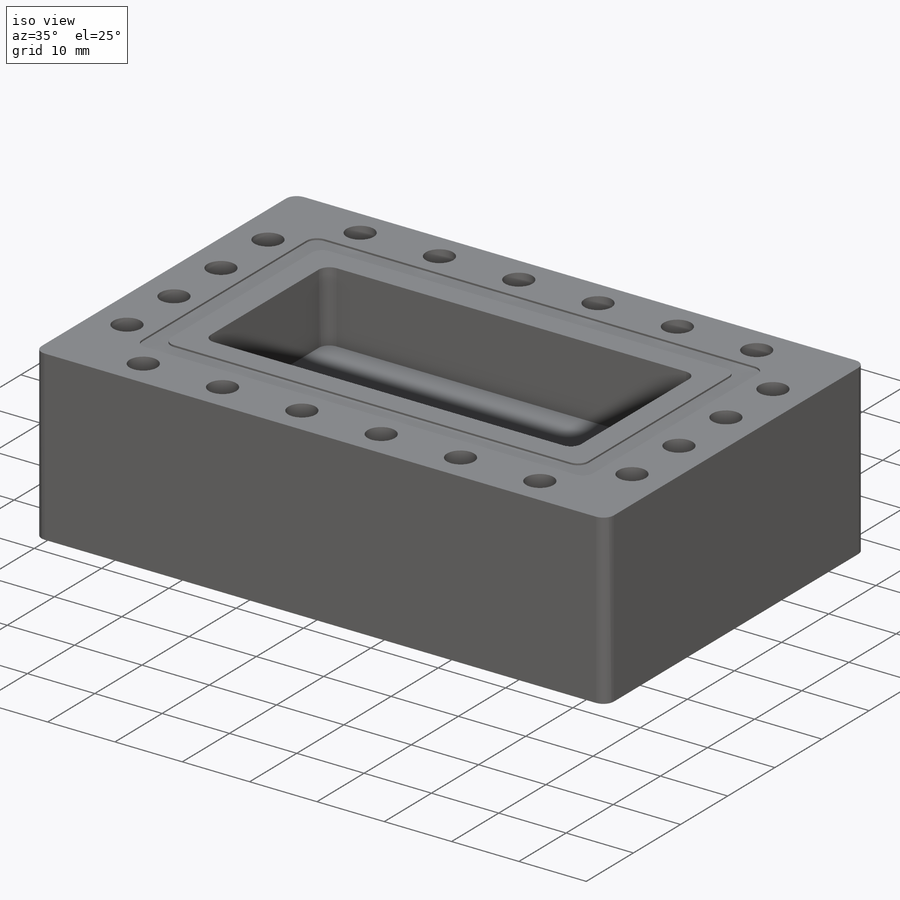
[diagram: iso view]
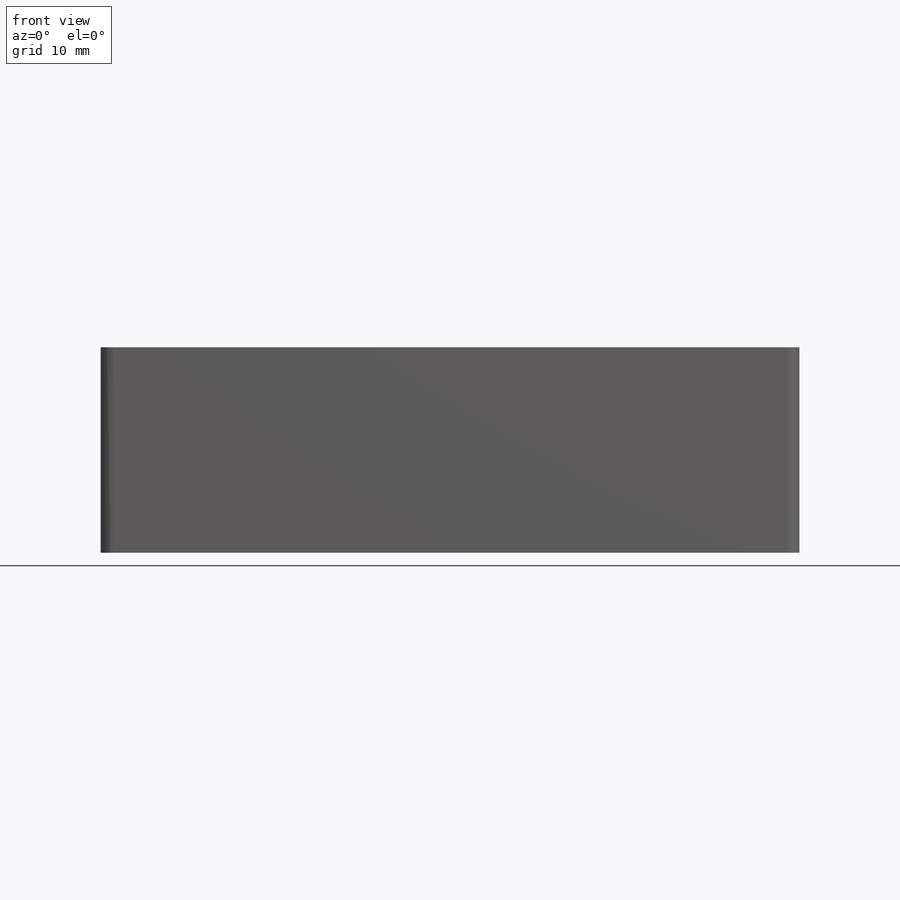
[diagram: front view]
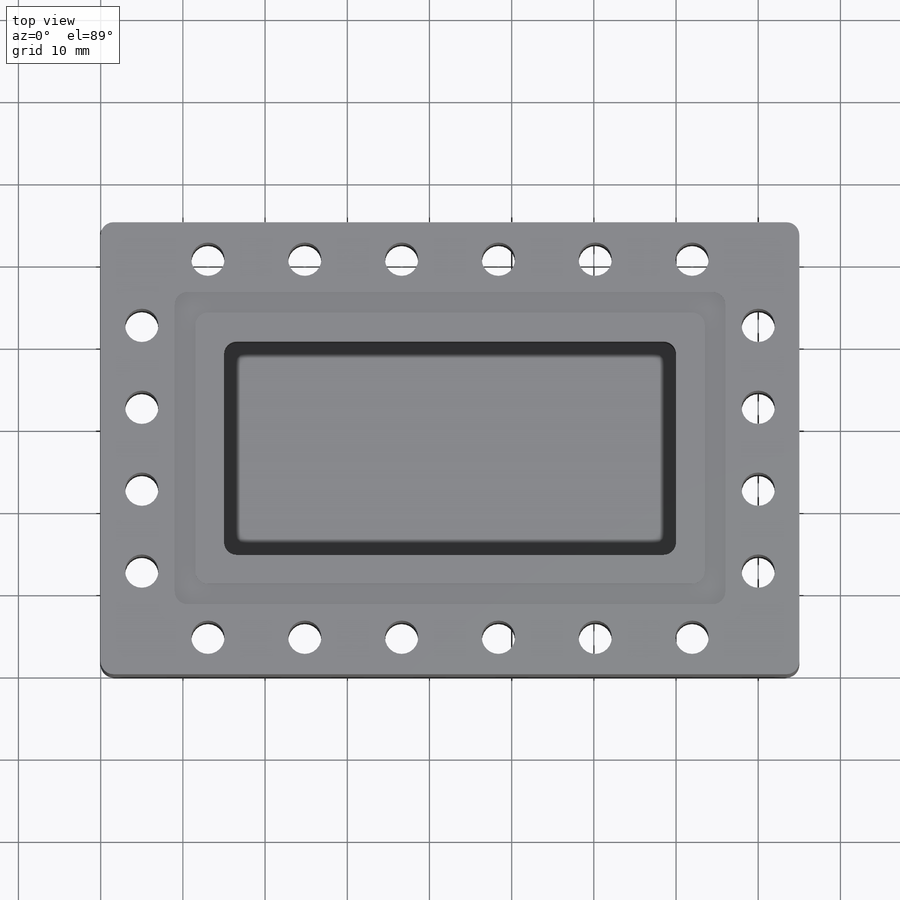
[diagram: top view]
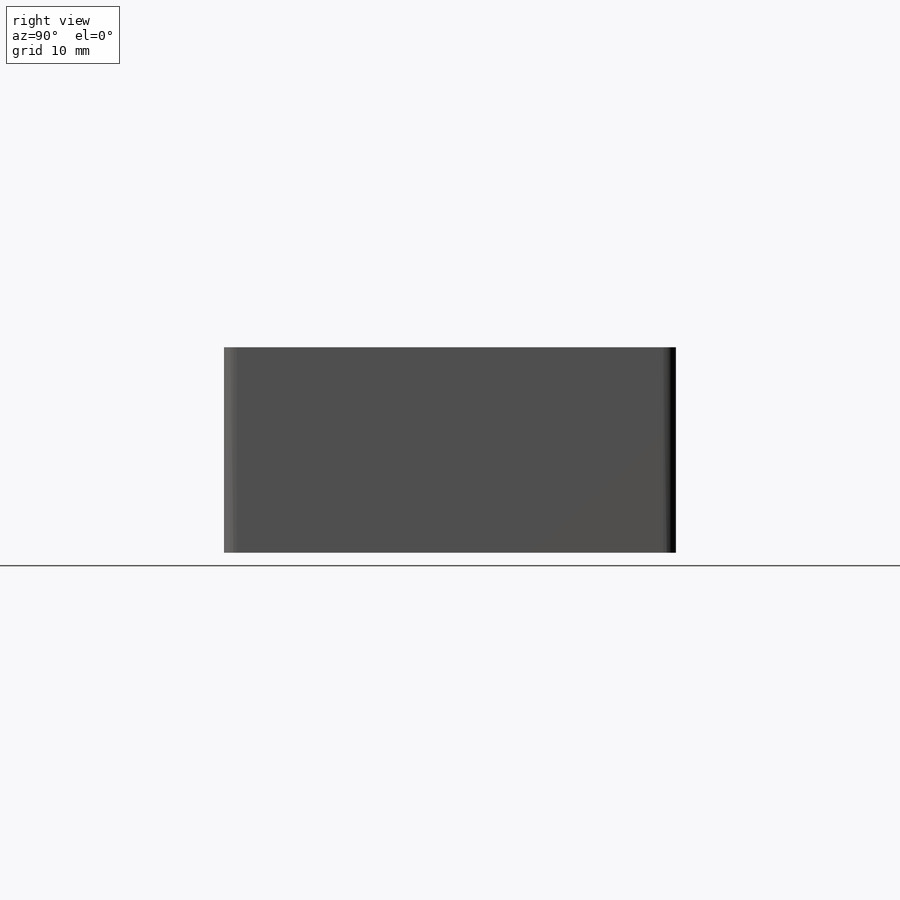
[diagram: right view]
SOLIDWORKS PART (.sldprt)
format: sldprt  version: not decoded by parser v0  size: 283,136 bytes
history: native  units: mm
features: sketch x4, cut_extrude x3, fillet x2, material x1, extrude x1 (+11 scaffold rows collapsed)
feature tree (22):
  scaffold x11  (default folders/planes/origin — collapsed)
  material  "Material <not specified>"
  sketch  "Sketch1"  dims[D1=85.0mm D2=55.0mm]
  extrude  "Boss-Extrude1"  Depth=25mm
  sketch  "Sketch2"  dims[D1=26.0mm D2=55.0mm]
  cut_extrude  "Cut-Extrude1"  Depth=10.5mm
  fillet  "Fillet1"  Radius=1.55mm
  sketch  "Sketch3"  dims[c1.D1=2.5mm c1.D2=~65.237284mm c2.D1=2.5mm c2.D2=3.5mm c2.D3=2.5mm]
  cut_extrude  "Cut-Extrude2"  Depth=0.25mm
  fillet  "Fillet2"  Radius=1.55mm
  sketch  "Sketch5"  dims[D2=4.05mm D1=4.0mm D3=~9.966667mm]
  cut_extrude  "Cut-Extrude4"  [1 undecoded]
decode coverage: 9 of 10 modeling features carry decoded parameters
note: ~ marks probable driven/reference dimensions
note: 1 parameter value undecoded
note: suppression state not decoded; provenance and decode notes live in map.json
